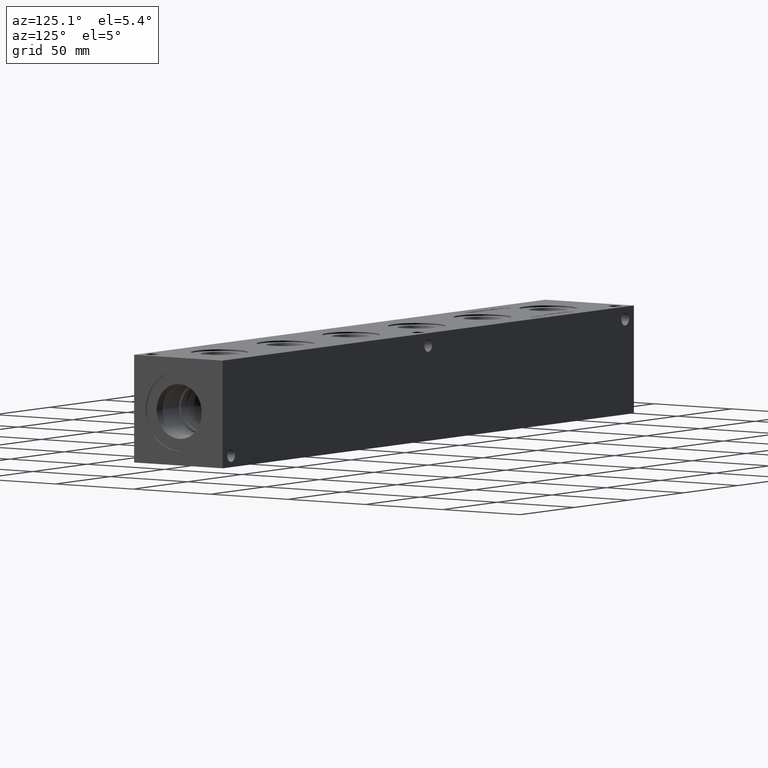
[diagram: clean part render]
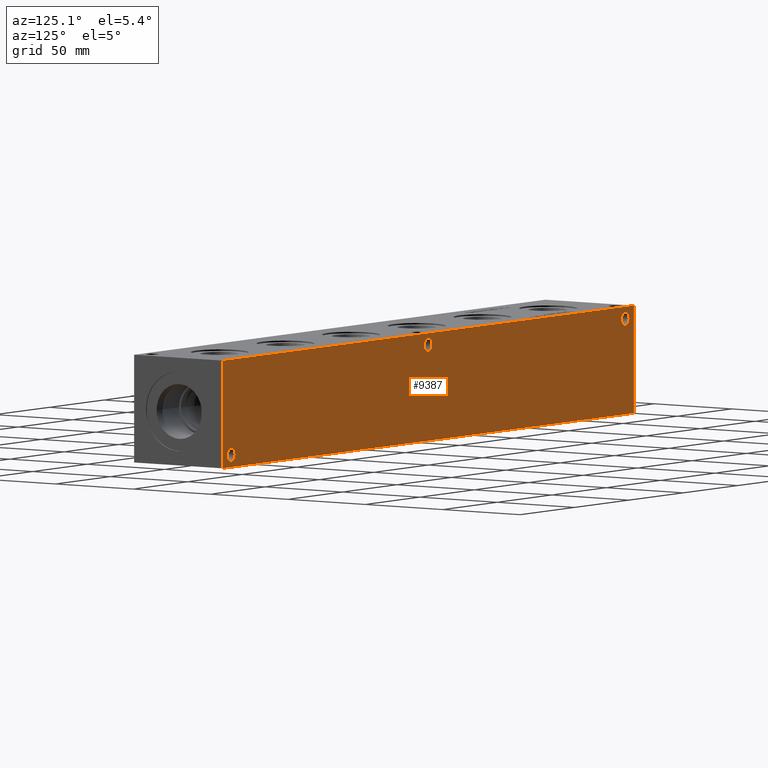
[diagram: same view with one face highlighted and labeled with its STEP entity id]
A machine part, auxiliary view. The second image highlights one B-rep face of the part: STEP entity #9387.
In plain terms, the highlighted planar face has unit normal (0, 1, 0).
Its self-contained STEP definition (entity closure, byte-faithful):
#228=CIRCLE('',#9713,3.5687);
#231=CIRCLE('',#9723,3.5687);
#234=CIRCLE('',#9732,3.5687);
#498=FACE_BOUND('',#1785,.T.);
#499=FACE_BOUND('',#1786,.T.);
#500=FACE_BOUND('',#1787,.T.);
#746=PLANE('',#10054);
#1231=FACE_OUTER_BOUND('',#1784,.T.);
#1784=EDGE_LOOP('',(#8433,#8434,#8435,#8436));
#1785=EDGE_LOOP('',(#8437));
#1786=EDGE_LOOP('',(#8438));
#1787=EDGE_LOOP('',(#8439));
#2067=LINE('',#14554,#2846);
#2578=LINE('',#16486,#3357);
#2579=LINE('',#16489,#3358);
#2580=LINE('',#16490,#3359);
#2846=VECTOR('',#10445,10.);
#3357=VECTOR('',#12130,10.);
#3358=VECTOR('',#12133,10.);
#3359=VECTOR('',#12134,10.);
#3941=VERTEX_POINT('',#14551);
#3942=VERTEX_POINT('',#14553);
#4293=VERTEX_POINT('',#15816);
#4298=VERTEX_POINT('',#15834);
#4303=VERTEX_POINT('',#15850);
#4511=VERTEX_POINT('',#16482);
#4513=VERTEX_POINT('',#16488);
#4997=EDGE_CURVE('',#3941,#3942,#2067,.T.);
#5512=EDGE_CURVE('',#4293,#4293,#228,.T.);
#5522=EDGE_CURVE('',#4298,#4298,#231,.T.);
#5531=EDGE_CURVE('',#4303,#4303,#234,.T.);
#5830=EDGE_CURVE('',#4511,#3942,#2578,.T.);
#5831=EDGE_CURVE('',#4513,#4511,#2579,.T.);
#5832=EDGE_CURVE('',#4513,#3941,#2580,.T.);
#8433=ORIENTED_EDGE('',*,*,#5831,.T.);
#8434=ORIENTED_EDGE('',*,*,#5830,.T.);
#8435=ORIENTED_EDGE('',*,*,#4997,.F.);
#8436=ORIENTED_EDGE('',*,*,#5832,.F.);
#8437=ORIENTED_EDGE('',*,*,#5512,.T.);
#8438=ORIENTED_EDGE('',*,*,#5522,.T.);
#8439=ORIENTED_EDGE('',*,*,#5531,.T.);
#9387=ADVANCED_FACE('',(#1231,#498,#499,#500),#746,.T.);
#9713=AXIS2_PLACEMENT_3D('',#15818,#11340,#11341);
#9723=AXIS2_PLACEMENT_3D('',#15836,#11363,#11364);
#9732=AXIS2_PLACEMENT_3D('',#15852,#11383,#11384);
#10054=AXIS2_PLACEMENT_3D('',#16487,#12131,#12132);
#10445=DIRECTION('',(-1.,0.,0.));
#11340=DIRECTION('center_axis',(0.,-1.,0.));
#11341=DIRECTION('ref_axis',(1.,0.,0.));
#11363=DIRECTION('center_axis',(0.,-1.,0.));
#11364=DIRECTION('ref_axis',(1.,0.,0.));
#11383=DIRECTION('center_axis',(0.,-1.,0.));
#11384=DIRECTION('ref_axis',(1.,0.,0.));
#12130=DIRECTION('',(0.,0.,1.));
#12131=DIRECTION('center_axis',(0.,1.,0.));
#12132=DIRECTION('ref_axis',(-1.,0.,0.));
#12133=DIRECTION('',(-1.,0.,0.));
#12134=DIRECTION('',(0.,0.,1.));
#14551=CARTESIAN_POINT('',(377.825,57.15,57.15));
#14553=CARTESIAN_POINT('',(0.,57.15,57.15));
#14554=CARTESIAN_POINT('',(377.825,57.15,57.15));
#15816=CARTESIAN_POINT('',(366.3061,57.15,6.35));
#15818=CARTESIAN_POINT('Origin',(369.8748,57.15,6.35));
#15834=CARTESIAN_POINT('',(4.3561,57.15,50.8));
#15836=CARTESIAN_POINT('Origin',(7.9248,57.15,50.8));
#15850=CARTESIAN_POINT('',(185.3565,57.15,50.8));
#15852=CARTESIAN_POINT('Origin',(188.9252,57.15,50.8));
#16482=CARTESIAN_POINT('',(0.,57.15,0.));
#16486=CARTESIAN_POINT('',(0.,57.15,0.));
#16487=CARTESIAN_POINT('Origin',(377.825,57.15,0.));
#16488=CARTESIAN_POINT('',(377.825,57.15,0.));
#16489=CARTESIAN_POINT('',(377.825,57.15,0.));
#16490=CARTESIAN_POINT('',(377.825,57.15,0.));